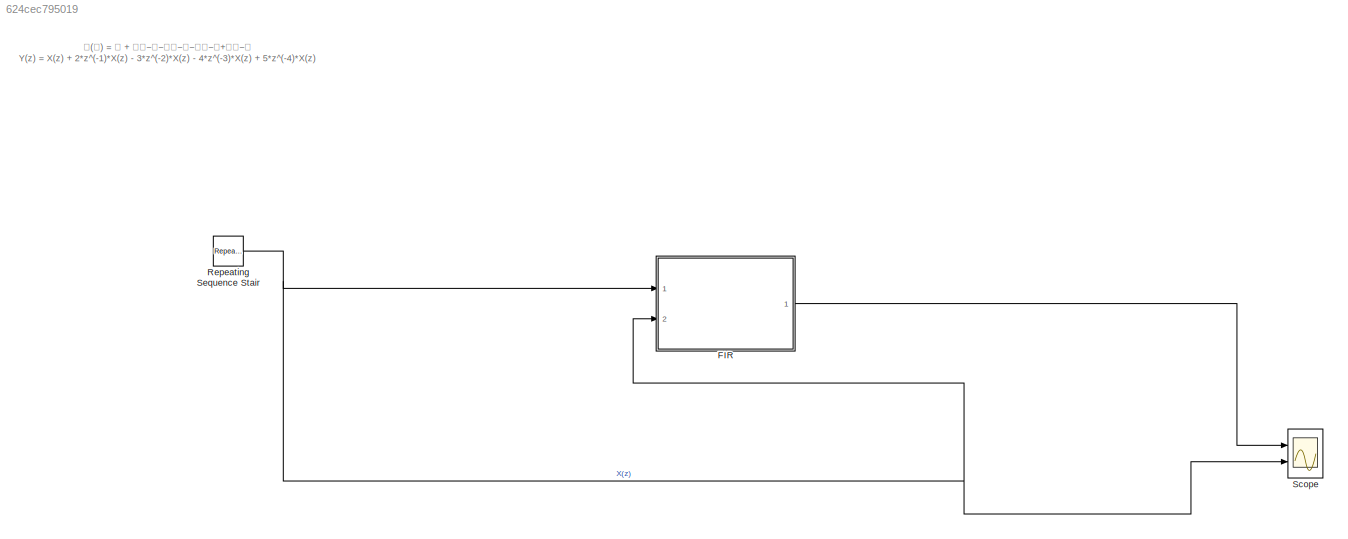
MODEL slx_624cec795019
KIND model
CONFIG AbsTol = auto
CONFIG EnableMultiTasking = off
CONFIG FixedStep = auto
CONFIG MaxStep = auto
CONFIG MinStep = auto
CONFIG RelTol = 1e-3
CONFIG SampleTimeConstraint = Unconstrained
CONFIG Solver = VariableStepAuto
CONFIG SolverName = VariableStepAuto
CONFIG StartTime = 0.0
CONFIG StopTime = 10.0
BLOCK [ModelReference] FIR
  ModelNameDialog = FIRfilter6
  ModelReferenceVersion = 1.5
  Ports = [2, 1]
BLOCK [Reference] Repeating Sequence Stair  REF=simulink/Sources/Repeating
Sequence
Stair
  Ports = [0, 1]
  SourceBlock = simulink/Sources/Repeating\nSequence\nStair
  SourceProductBaseCode = SL
  SourceType = Repeating Sequence Stair
BLOCK [Scope] Scope
  Floating = off
  NumInputPorts = 2
  Ports = [2]
  ScopeSpecificationString = Simulink.scopes.TimeScopeBlockCfg('CurrentConfiguration', extmgr.ConfigurationSet(extmgr.Configuration('Core','General UI',true),extmgr.Configuration('Core','Source UI',true),extmgr.Configuration('Sources','WiredSimulink',true),extmgr.Configuration('Visuals','Time Domain',true,'SerializedDisplays',{struct('MinYLimReal','-15.5','MaxYLimReal','19.5','YLabelReal','','MinYLimMag','0.00000','MaxYLimMag...<+1988ch>
ANNOTATION (root): 𝐇(𝐳) = 𝟏 + 𝟐𝐳−𝟏−𝟑𝐳−𝟐−𝟒𝐳−𝟑+𝟓𝐳−𝟒 Y(z) = X(z) + 2*z^(-1)*X(z) - 3*z^(-2)*X(z) - 4*z^(-3)*X(z) + 5*z^(-4)*X(z)
LINE FIR:1 -> Scope:1
NET Repeating Sequence Stair:1 -> FIR:1, FIR:2, Scope:2
note: NET lines group one-source signal fan-out (src -> all destinations, sorted); 1:1 wires keep LINE
